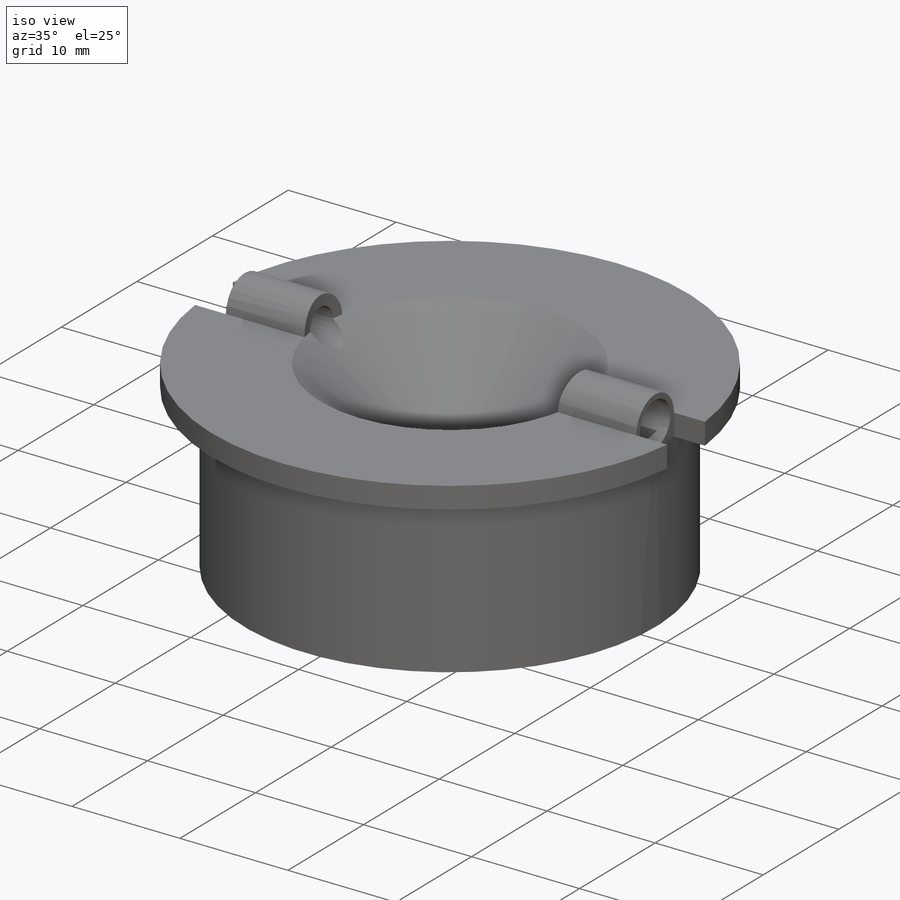
[diagram: iso view]
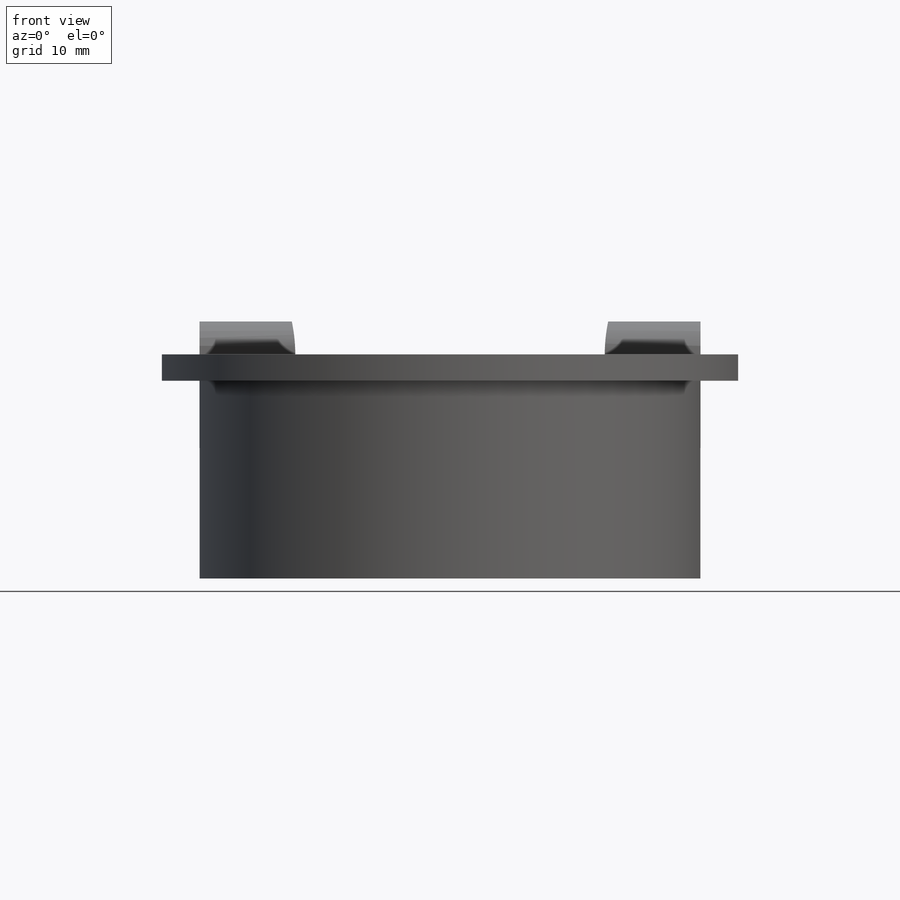
[diagram: front view]
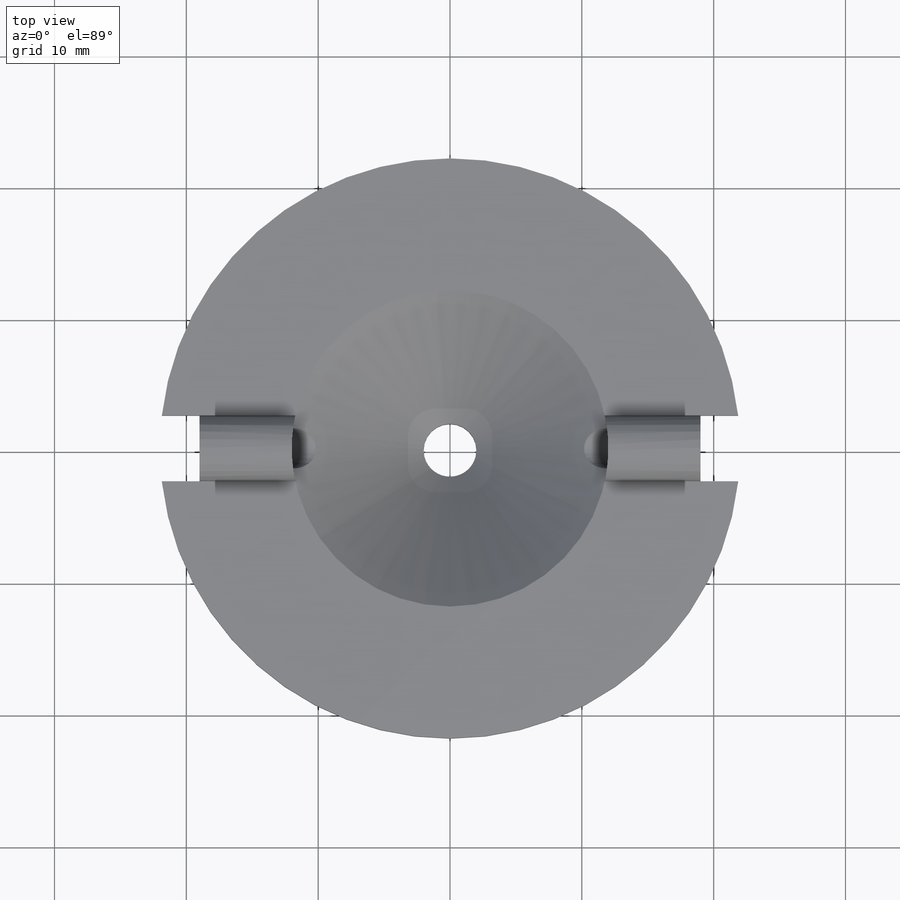
[diagram: top view]
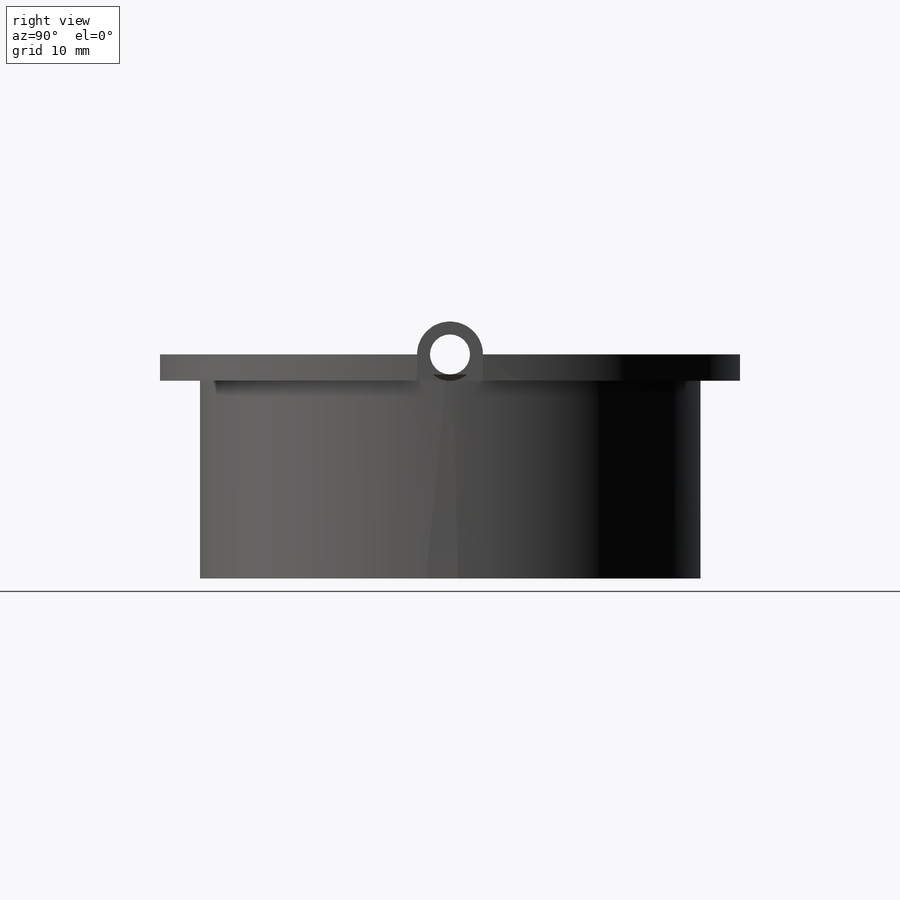
[diagram: right view]
SOLIDWORKS PART (.sldprt)
format: sldprt  version: not decoded by parser v0  size: 572,928 bytes
history: native  units: mm
features: sketch x16, cut_extrude x8, revolve x2, extrude x2, sweep x2, material x1 (+16 scaffold rows collapsed)
feature tree (47):
  scaffold x16  (default folders/planes/origin — collapsed)
  material  "Material <not specified>"
  sketch  "Sketch1"  dims[D1=2.0mm]
  revolve  "Revolve1"  Angle=360deg
  sketch  "Sketch2"  dims[c1.D1=0.0deg c2.D1=2.5mm c3.D1=90.0deg c4.D1=2.5mm]
  revolve  "Revolve2"  Angle=180deg
  sketch  "Sketch8"  dims[D1=0.0mm]
  extrude  "Boss-Extrude4"  [1 undecoded]
  sketch  "Sketch9"
  cut_extrude  "Cut-Extrude1"  [1 undecoded]
  sketch  "Sketch17"  dims[D1=3.0mm]
  cut_extrude  "Cut-Extrude6"  [1 undecoded]
  sketch  "Sketch16"  dims[D1=~1.492678mm]
  cut_extrude  "Cut-Extrude5"  [1 undecoded]
  sketch  "Sketch19"  dims[D1=~2.043305mm]
  cut_extrude  "Cut-Extrude7"  Depth=3mm
  sketch  "Sketch20"  dims[D1=~1.998524mm]
  cut_extrude  "Cut-Extrude8"  Depth=3mm
  sketch  "Sketch21"  dims[D1=~15.207972mm]
  cut_extrude  "Cut-Extrude9"  Depth=6.5mm
  sketch  "Sketch22"  dims[D1=~4.977254mm]
  extrude  "Boss-Extrude6"  Depth=6.5mm
  sketch  "Sketch23"  dims[D1=3.0mm]
  sketch  "3DSketch3"  dims[c1.D1=1.0mm c2.D1=1.5mm]
  sweep  "Cut-Sweep2"
  sketch  "Sketch24"  dims[D1=2.0mm]
  sketch  "3DSketch4"  dims[D1=1.5mm]
  sweep  "Cut-Sweep3"
  sketch  "Sketch25"  dims[D1=3.17mm]
  cut_extrude  "Cut-Extrude11"  [1 undecoded]
  sketch  "Sketch26"  dims[D1=~3.608202mm]
  cut_extrude  "Cut-Extrude12"  [1 undecoded]
decode coverage: 21 of 30 modeling features carry decoded parameters
note: ~ marks probable driven/reference dimensions
note: 6 parameter values undecoded
summary: no parameter record found for 6 features
note: suppression state not decoded; provenance and decode notes live in map.json
